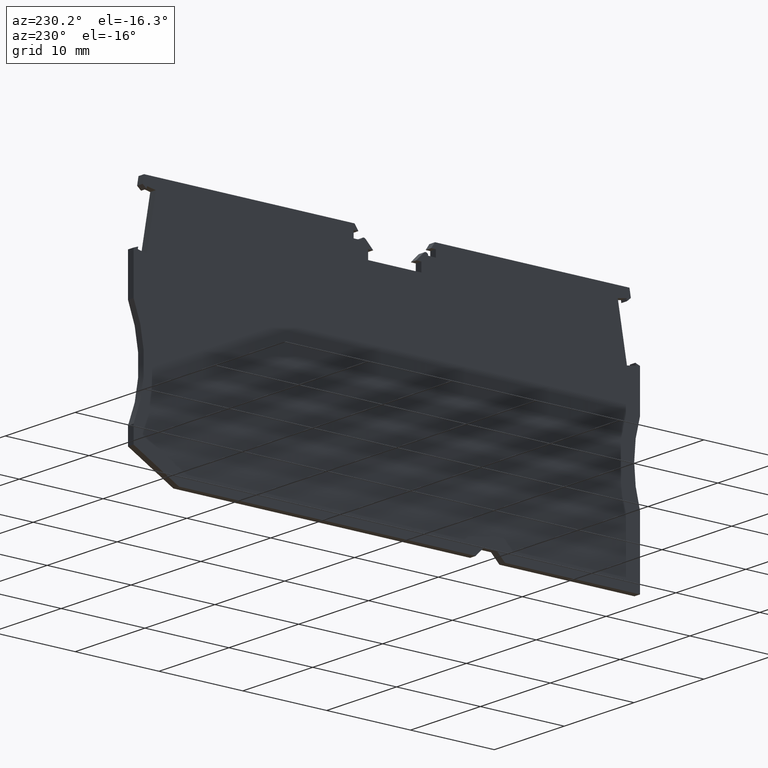
[diagram: clean part render]
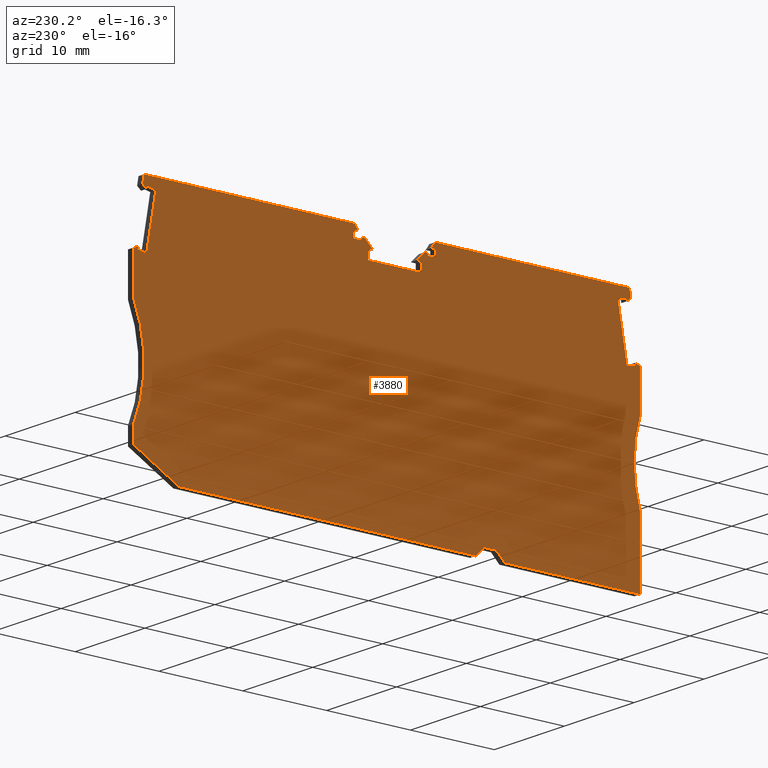
[diagram: same view with one face highlighted and labeled with its STEP entity id]
A machine part, auxiliary view. The second image highlights one B-rep face of the part: STEP entity #3880.
In plain terms, the highlighted planar face has unit normal (-1, 0, 0).
Its self-contained STEP definition (entity closure, byte-faithful):
#10=CARTESIAN_POINT('',(5.15000000000215,29.5008364585671,
6.60000000000372));
#20=DIRECTION('',(-1.,2.6054385416317E-18,1.33912933811495E-29));
#30=DIRECTION('',(-2.6054385416317E-18,-1.,2.47316056523061E-13));
#40=AXIS2_PLACEMENT_3D('',#10,#20,#30);
#50=PLANE('',#40);
#60=CARTESIAN_POINT('',(5.15000000000215,-11.6296808260473,
30.0845663548104));
#70=DIRECTION('',(-1.72251695570906E-18,-0.984807753012126,
0.173648177667397));
#80=VECTOR('',#70,1.);
#90=LINE('',#60,#80);
#100=CARTESIAN_POINT('',(5.15000000000215,1.55418527211285,
27.7598950516506));
#110=VERTEX_POINT('',#100);
#120=CARTESIAN_POINT('',(5.15000000000215,0.506641544359464,
27.944605274326));
#130=VERTEX_POINT('',#120);
#140=EDGE_CURVE('',#110,#130,#90,.T.);
#150=ORIENTED_EDGE('',*,*,#140,.F.);
#160=CARTESIAN_POINT('',(5.15000000000215,3.4081716127214,
44.4000000000081));
#170=DIRECTION('',(-1.76637357092951E-17,0.173648177667883,
0.98480775301204));
#180=VECTOR('',#170,1.);
#190=LINE('',#160,#180);
#200=CARTESIAN_POINT('',(5.15000000000215,0.55436571631232,
28.215262503077));
#210=VERTEX_POINT('',#200);
#220=EDGE_CURVE('',#130,#210,#190,.T.);
#230=ORIENTED_EDGE('',*,*,#220,.F.);
#240=CARTESIAN_POINT('',(5.15000000000215,-11.6296808260489,
23.7806322288468));
#250=DIRECTION('',(-8.99420676283076E-19,0.939692620788468,
0.342020143318635));
#260=VECTOR('',#250,1.);
#270=LINE('',#240,#260);
#280=CARTESIAN_POINT('',(5.15000000000215,2.06412664738309E-12,
28.0134898834471));
#290=VERTEX_POINT('',#280);
#300=EDGE_CURVE('',#290,#210,#270,.T.);
#310=ORIENTED_EDGE('',*,*,#300,.T.);
#320=CARTESIAN_POINT('',(5.15000000000215,6.08579853178526E-12,
44.4000000000089));
#330=DIRECTION('',(-1.39162937710337E-29,-2.45262143927505E-13,-1.));
#340=VECTOR('',#330,1.);
#350=LINE('',#320,#340);
#360=CARTESIAN_POINT('',(5.15000000000215,8.86402062860725E-13,
23.2000000000051));
#370=VERTEX_POINT('',#360);
#380=EDGE_CURVE('',#290,#370,#350,.T.);
#390=ORIENTED_EDGE('',*,*,#380,.F.);
#400=CARTESIAN_POINT('',(5.15000000000215,-14.3090880212528,
18.7000000000034));
#410=DIRECTION('',(1.,-2.6054385416317E-18,-1.33912933811495E-29));
#420=DIRECTION('',(2.6054385416317E-18,1.,-2.47218912008407E-13));
#430=AXIS2_PLACEMENT_3D('',#400,#410,#420);
#440=CIRCLE('',#430,15.);
#450=CARTESIAN_POINT('',(5.15000000000215,-1.36068933898059E-12,
14.1999999999946));
#460=VERTEX_POINT('',#450);
#470=EDGE_CURVE('',#460,#370,#440,.T.);
#480=ORIENTED_EDGE('',*,*,#470,.T.);
#490=CARTESIAN_POINT('',(5.15000000000215,-2.26307861339592E-12,
10.5138730000089));
#500=DIRECTION('',(-1.40303088237414E-29,-2.45262143927505E-13,-1.));
#510=VECTOR('',#500,1.);
#520=LINE('',#490,#510);
#530=CARTESIAN_POINT('',(5.15000000000215,-3.32178728967847E-12,
6.200000000011));
#540=VERTEX_POINT('',#530);
#550=EDGE_CURVE('',#460,#540,#520,.T.);
#560=ORIENTED_EDGE('',*,*,#550,.F.);
#570=CARTESIAN_POINT('',(5.15000000000215,36.2906041739468,
6.20000000000204));
#580=DIRECTION('',(2.6054385416317E-18,1.,-2.47218912008407E-13));
#590=VECTOR('',#580,1.);
#600=LINE('',#570,#590);
#610=CARTESIAN_POINT('',(5.15000000000215,16.0999999999931,
6.20000000000702));
#620=VERTEX_POINT('',#610);
#630=EDGE_CURVE('',#540,#620,#600,.T.);
#640=ORIENTED_EDGE('',*,*,#630,.F.);
#650=CARTESIAN_POINT('',(5.15000000000215,20.413872999992,
10.5138730000039));
#660=DIRECTION('',(1.84232326076248E-18,0.70710678118672,
0.707106781186375));
#670=VECTOR('',#660,1.);
#680=LINE('',#650,#670);
#690=CARTESIAN_POINT('',(5.15000000000215,17.0999999999933,
7.20000000000679));
#700=VERTEX_POINT('',#690);
#710=EDGE_CURVE('',#620,#700,#680,.T.);
#720=ORIENTED_EDGE('',*,*,#710,.F.);
#730=CARTESIAN_POINT('',(5.15000000000215,36.290604173947,
7.20000000000205));
#740=DIRECTION('',(2.6054385416317E-18,1.,-2.47316056523061E-13));
#750=VECTOR('',#740,1.);
#760=LINE('',#730,#750);
#770=CARTESIAN_POINT('',(5.15000000000216,18.5999999999933,
7.20000000000642));
#780=VERTEX_POINT('',#770);
#790=EDGE_CURVE('',#700,#780,#760,.T.);
#800=ORIENTED_EDGE('',*,*,#790,.F.);
#810=CARTESIAN_POINT('',(5.15000000000215,15.2861269999962,
10.5138730000051));
#820=DIRECTION('',(1.84232326074263E-18,0.707106781186369,
-0.707106781186726));
#830=VECTOR('',#820,1.);
#840=LINE('',#810,#830);
#850=CARTESIAN_POINT('',(5.15000000000215,19.5999999999931,
6.20000000000615));
#860=VERTEX_POINT('',#850);
#870=EDGE_CURVE('',#780,#860,#840,.T.);
#880=ORIENTED_EDGE('',*,*,#870,.F.);
#890=CARTESIAN_POINT('',(5.15000000000215,36.2906041739468,
6.20000000000203));
#900=DIRECTION('',(-2.6054385416317E-18,-1.,2.47413201037716E-13));
#910=VECTOR('',#900,1.);
#920=LINE('',#890,#910);
#930=CARTESIAN_POINT('',(5.15000000000215,54.9927090400278,
6.1999999999974));
#940=VERTEX_POINT('',#930);
#950=EDGE_CURVE('',#940,#860,#920,.T.);
#960=ORIENTED_EDGE('',*,*,#950,.T.);
#970=CARTESIAN_POINT('',(5.15000000000215,36.2906041739442,
-4.17604874851547));
#980=DIRECTION('',(2.27828720063853E-18,0.87443521089744,
0.485142311020951));
#990=VECTOR('',#980,1.);
#1000=LINE('',#970,#990);
#1010=CARTESIAN_POINT('',(5.15000000000215,60.3999999999976,
9.19999999998612));
#1020=VERTEX_POINT('',#1010);
#1030=EDGE_CURVE('',#940,#1020,#1000,.T.);
#1040=ORIENTED_EDGE('',*,*,#1030,.F.);
#1050=CARTESIAN_POINT('',(5.15000000000215,60.399999999998,
10.513872999994));
#1060=DIRECTION('',(1.4035660166779E-29,2.47316056523061E-13,1.));
#1070=VECTOR('',#1060,1.);
#1080=LINE('',#1050,#1070);
#1090=CARTESIAN_POINT('',(5.15000000000215,60.3999999999981,
11.1999999999951));
#1100=VERTEX_POINT('',#1090);
#1110=EDGE_CURVE('',#1020,#1100,#1080,.T.);
#1120=ORIENTED_EDGE('',*,*,#1110,.F.);
#1130=CARTESIAN_POINT('',(5.15000000000215,74.1477270848688,
17.1999999999879));
#1140=DIRECTION('',(1.,-2.6054385416317E-18,-1.33912933811495E-29));
#1150=DIRECTION('',(2.6054385416317E-18,1.,-2.47218912008407E-13));
#1160=AXIS2_PLACEMENT_3D('',#1130,#1140,#1150);
#1170=CIRCLE('',#1160,15.);
#1180=CARTESIAN_POINT('',(5.15000000000215,60.4000000000028,
23.1999999999913));
#1190=VERTEX_POINT('',#1180);
#1200=EDGE_CURVE('',#1190,#1100,#1170,.T.);
#1210=ORIENTED_EDGE('',*,*,#1200,.T.);
#1220=CARTESIAN_POINT('',(5.15000000000215,60.3999999999996,
10.513872999994));
#1230=DIRECTION('',(1.40354070627136E-29,2.47218912007316E-13,1.));
#1240=VECTOR('',#1230,1.);
#1250=LINE('',#1220,#1240);
#1260=CARTESIAN_POINT('',(5.15000000000215,60.400000000004,
28.0134898833314));
#1270=VERTEX_POINT('',#1260);
#1280=EDGE_CURVE('',#1190,#1270,#1250,.T.);
#1290=ORIENTED_EDGE('',*,*,#1280,.F.);
#1300=CARTESIAN_POINT('',(5.15000000000215,36.2906041739543,
36.7885923299644));
#1310=DIRECTION('',(2.44831137148416E-18,0.9396926207883,
-0.342020143319098));
#1320=VECTOR('',#1310,1.);
#1330=LINE('',#1300,#1320);
#1340=CARTESIAN_POINT('',(5.15000000000215,59.8524660845461,
28.212775930805));
#1350=VERTEX_POINT('',#1340);
#1360=EDGE_CURVE('',#1350,#1270,#1330,.T.);
#1370=ORIENTED_EDGE('',*,*,#1360,.T.);
#1380=CARTESIAN_POINT('',(5.15000000000216,62.973260200197,
10.5138729999933));
#1390=DIRECTION('',(-4.5242965476556E-19,-0.173648177667398,
0.984807753012126));
#1400=VECTOR('',#1390,1.);
#1410=LINE('',#1380,#1400);
#1420=CARTESIAN_POINT('',(5.15000000000215,59.8997518067207,
27.9446052743093));
#1430=VERTEX_POINT('',#1420);
#1440=EDGE_CURVE('',#1430,#1350,#1410,.T.);
#1450=ORIENTED_EDGE('',*,*,#1440,.T.);
#1460=CARTESIAN_POINT('',(5.15000000000215,36.2906041739511,
23.7816755551231));
#1470=DIRECTION('',(-2.56585607579806E-18,-0.984807753012211,
-0.173648177666912));
#1480=VECTOR('',#1470,1.);
#1490=LINE('',#1460,#1480);
#1500=CARTESIAN_POINT('',(5.15000000000215,58.8460075109985,
27.7588017242058));
#1510=VERTEX_POINT('',#1500);
#1520=EDGE_CURVE('',#1430,#1510,#1490,.T.);
#1530=ORIENTED_EDGE('',*,*,#1520,.F.);
#1540=CARTESIAN_POINT('',(5.15000000000215,61.8867537254707,
10.5138729999936));
#1550=DIRECTION('',(4.52429654764229E-19,0.173648177666887,
-0.984807753012216));
#1560=VECTOR('',#1550,1.);
#1570=LINE('',#1540,#1560);
#1580=CARTESIAN_POINT('',(5.15000000000215,57.7476827872554,
33.9877107620084));
#1590=VERTEX_POINT('',#1580);
#1600=EDGE_CURVE('',#1590,#1510,#1570,.T.);
#1610=ORIENTED_EDGE('',*,*,#1600,.T.);
#1620=CARTESIAN_POINT('',(5.15000000000215,36.2906041739527,
30.2042488753086));
#1630=DIRECTION('',(2.56585607579822E-18,0.984807753012272,
0.17364817766657));
#1640=VECTOR('',#1630,1.);
#1650=LINE('',#1620,#1640);
#1660=CARTESIAN_POINT('',(5.15000000000215,58.8014270829787,
34.1735143121116));
#1670=VERTEX_POINT('',#1660);
#1680=EDGE_CURVE('',#1590,#1670,#1650,.T.);
#1690=ORIENTED_EDGE('',*,*,#1680,.F.);
#1700=CARTESIAN_POINT('',(5.15000000000216,62.9732602001688,
10.5138729999933));
#1710=DIRECTION('',(-4.52429654762137E-19,-0.173648177666084,
0.984807753012357));
#1720=VECTOR('',#1710,1.);
#1730=LINE('',#1700,#1720);
#1740=CARTESIAN_POINT('',(5.15000000000216,58.8487128051534,
33.9053436556138));
#1750=VERTEX_POINT('',#1740);
#1760=EDGE_CURVE('',#1750,#1670,#1730,.T.);
#1770=ORIENTED_EDGE('',*,*,#1760,.T.);
#1780=CARTESIAN_POINT('',(5.15000000000215,36.2906041739489,
14.976843023174));
#1790=DIRECTION('',(-1.99588171671624E-18,-0.766044443119997,
-0.642787609685325));
#1800=VECTOR('',#1790,1.);
#1810=LINE('',#1780,#1800);
#1820=CARTESIAN_POINT('',(5.15000000000216,59.3175253285266,
34.2987240710663));
#1830=VERTEX_POINT('',#1820);
#1840=EDGE_CURVE('',#1830,#1750,#1810,.T.);
#1850=ORIENTED_EDGE('',*,*,#1840,.T.);
#1860=CARTESIAN_POINT('',(5.15000000000215,63.5114363044938,
10.5138729999932));
#1870=DIRECTION('',(-4.52429654764816E-19,-0.173648177667112,
0.984807753012176));
#1880=VECTOR('',#1870,1.);
#1890=LINE('',#1860,#1880);
#1900=CARTESIAN_POINT('',(5.15000000000215,59.1497897161592,
35.2499999999864));
#1910=VERTEX_POINT('',#1900);
#1920=EDGE_CURVE('',#1830,#1910,#1890,.T.);
#1930=ORIENTED_EDGE('',*,*,#1920,.F.);
#1940=CARTESIAN_POINT('',(5.15000000000215,-11.6296808260461,
35.2500000000039));
#1950=DIRECTION('',(-2.6054385416317E-18,-1.,2.47218912008407E-13));
#1960=VECTOR('',#1950,1.);
#1970=LINE('',#1940,#1960);
#1980=CARTESIAN_POINT('',(5.15000000000215,34.0485682692847,
35.2499999999926));
#1990=VERTEX_POINT('',#1980);
#2000=EDGE_CURVE('',#1910,#1990,#1970,.T.);
#2010=ORIENTED_EDGE('',*,*,#2000,.F.);
#2020=CARTESIAN_POINT('',(5.15000000000215,40.4554672439113,
44.3999999999989));
#2030=DIRECTION('',(-3.33343064548209E-17,-0.573576436351246,
-0.819152044288852));
#2040=VECTOR('',#2030,1.);
#2050=LINE('',#2020,#2040);
#2060=CARTESIAN_POINT('',(5.15000000000215,33.5934333694935,
34.6000000000572));
#2070=VERTEX_POINT('',#2060);
#2080=EDGE_CURVE('',#1990,#2070,#2050,.T.);
#2090=ORIENTED_EDGE('',*,*,#2080,.F.);
#2100=CARTESIAN_POINT('',(5.15000000000215,-11.6296808260462,
34.6000000000684));
#2110=DIRECTION('',(2.6054385416317E-18,1.,-2.47218912008407E-13));
#2120=VECTOR('',#2110,1.);
#2130=LINE('',#2100,#2120);
#2140=CARTESIAN_POINT('',(5.15000000000215,34.1500000001094,
34.6000000000571));
#2150=VERTEX_POINT('',#2140);
#2160=EDGE_CURVE('',#2070,#2150,#2130,.T.);
#2170=ORIENTED_EDGE('',*,*,#2160,.F.);
#2180=CARTESIAN_POINT('',(5.15000000000215,34.150000000166,
44.4000000000005));
#2190=DIRECTION('',(3.35194174038394E-28,5.77342340601916E-12,1.));
#2200=VECTOR('',#2190,1.);
#2210=LINE('',#2180,#2200);
#2220=CARTESIAN_POINT('',(5.15000000000215,34.1500000001048,
33.8000000000155));
#2230=VERTEX_POINT('',#2220);
#2240=EDGE_CURVE('',#2230,#2150,#2210,.T.);
#2250=ORIENTED_EDGE('',*,*,#2240,.T.);
#2260=CARTESIAN_POINT('',(5.15000000000215,-11.6296808260464,
33.8000000000268));
#2270=DIRECTION('',(2.6054385416317E-18,1.,-2.47316056523061E-13));
#2280=VECTOR('',#2270,1.);
#2290=LINE('',#2260,#2280);
#2300=CARTESIAN_POINT('',(5.15000000000215,33.2404163058027,
33.8000000000157));
#2310=VERTEX_POINT('',#2300);
#2320=EDGE_CURVE('',#2310,#2230,#2290,.T.);
#2330=ORIENTED_EDGE('',*,*,#2320,.T.);
#2340=CARTESIAN_POINT('',(5.15000000000215,32.9404163058027,
33.8000000000591));
#2350=DIRECTION('',(-1.,5.81165897728895E-17,-3.37505634420511E-31));
#2360=DIRECTION('',(-5.81165897728895E-17,-1.,3.04353764413179E-13));
#2370=AXIS2_PLACEMENT_3D('',#2340,#2350,#2360);
#2380=CIRCLE('',#2370,0.3);
#2390=CARTESIAN_POINT('',(5.15000000000215,32.7282842714468,
34.0121320344151));
#2400=VERTEX_POINT('',#2390);
#2410=EDGE_CURVE('',#2400,#2310,#2380,.T.);
#2420=ORIENTED_EDGE('',*,*,#2410,.T.);
#2430=CARTESIAN_POINT('',(5.15000000000215,-11.6296808260573,
-10.3458330630619));
#2440=DIRECTION('',(4.10946347278593E-17,0.707106781186764,
0.707106781186331));
#2450=VECTOR('',#2440,1.);
#2460=LINE('',#2430,#2450);
#2470=CARTESIAN_POINT('',(5.15000000000216,31.8161522370139,
33.0999999999827));
#2480=VERTEX_POINT('',#2470);
#2490=EDGE_CURVE('',#2480,#2400,#2460,.T.);
#2500=ORIENTED_EDGE('',*,*,#2490,.T.);
#2510=CARTESIAN_POINT('',(5.15000000000215,-11.6296808260466,
33.0999999999955));
#2520=DIRECTION('',(-2.6054385416317E-18,-1.,2.92835200532693E-13));
#2530=VECTOR('',#2520,1.);
#2540=LINE('',#2510,#2530);
#2550=CARTESIAN_POINT('',(5.15000000000215,32.4250000001224,
33.0999999999826));
#2560=VERTEX_POINT('',#2550);
#2570=EDGE_CURVE('',#2560,#2480,#2540,.T.);
#2580=ORIENTED_EDGE('',*,*,#2570,.T.);
#2590=CARTESIAN_POINT('',(5.15000000000215,32.4250000001169,
10.5138730000009));
#2600=DIRECTION('',(1.40333822302157E-29,2.46441755891169E-13,1.));
#2610=VECTOR('',#2600,1.);
#2620=LINE('',#2590,#2610);
#2630=CARTESIAN_POINT('',(5.15000000000215,32.4250000001222,
32.0499999999829));
#2640=VERTEX_POINT('',#2630);
#2650=EDGE_CURVE('',#2640,#2560,#2620,.T.);
#2660=ORIENTED_EDGE('',*,*,#2650,.T.);
#2670=CARTESIAN_POINT('',(5.15000000000215,36.2906041739532,
32.0499999999817));
#2680=DIRECTION('',(2.6054385416317E-18,1.,-3.0517255389384E-13));
#2690=VECTOR('',#2680,1.);
#2700=LINE('',#2670,#2690);
#2710=CARTESIAN_POINT('',(5.15000000000215,26.0750000001222,
32.0499999999848));
#2720=VERTEX_POINT('',#2710);
#2730=EDGE_CURVE('',#2720,#2640,#2700,.T.);
#2740=ORIENTED_EDGE('',*,*,#2730,.T.);
#2750=CARTESIAN_POINT('',(5.15000000000215,26.0750000001156,
10.5138730000025));
#2760=DIRECTION('',(-1.41864017149126E-29,-3.0517255389384E-13,-1.));
#2770=VECTOR('',#2760,1.);
#2780=LINE('',#2750,#2770);
#2790=CARTESIAN_POINT('',(5.15000000000215,26.0750000001225,
33.0999999999846));
#2800=VERTEX_POINT('',#2790);
#2810=EDGE_CURVE('',#2800,#2720,#2780,.T.);
#2820=ORIENTED_EDGE('',*,*,#2810,.T.);
#2830=CARTESIAN_POINT('',(5.15000000000215,-11.6296808260466,
33.0999999999944));
#2840=DIRECTION('',(-2.6054385416317E-18,-1.,2.58862375979163E-13));
#2850=VECTOR('',#2840,1.);
#2860=LINE('',#2830,#2850);
#2870=CARTESIAN_POINT('',(5.15000000000216,26.6838477632309,
33.0999999999844));
#2880=VERTEX_POINT('',#2870);
#2890=EDGE_CURVE('',#2880,#2800,#2860,.T.);
#2900=ORIENTED_EDGE('',*,*,#2890,.T.);
#2910=CARTESIAN_POINT('',(5.15000000000215,-11.6296808260371,
71.4135285892713));
#2920=DIRECTION('',(4.10946347278371E-17,0.707106781186374,
-0.707106781186721));
#2930=VECTOR('',#2920,1.);
#2940=LINE('',#2910,#2930);
#2950=CARTESIAN_POINT('',(5.15000000000215,25.7717157287986,
34.0121320344173));
#2960=VERTEX_POINT('',#2950);
#2970=EDGE_CURVE('',#2960,#2880,#2940,.T.);
#2980=ORIENTED_EDGE('',*,*,#2970,.T.);
#2990=CARTESIAN_POINT('',(5.15000000000215,25.5595836944425,
33.8000000000614));
#3000=DIRECTION('',(1.,-5.81165897728895E-17,3.37505634420511E-31));
#3010=DIRECTION('',(5.81165897728895E-17,1.,-2.47316056523061E-13));
#3020=AXIS2_PLACEMENT_3D('',#2990,#3000,#3010);
#3030=CIRCLE('',#3020,0.3);
#3040=CARTESIAN_POINT('',(5.15000000000215,25.2595836944425,
33.799999999975));
#3050=VERTEX_POINT('',#3040);
#3060=EDGE_CURVE('',#2960,#3050,#3030,.T.);
#3070=ORIENTED_EDGE('',*,*,#3060,.F.);
#3080=CARTESIAN_POINT('',(5.15000000000215,-11.6296808260464,
33.7999999999841));
#3090=DIRECTION('',(2.6054385416317E-18,1.,-2.47316056523061E-13));
#3100=VECTOR('',#3090,1.);
#3110=LINE('',#3080,#3100);
#3120=CARTESIAN_POINT('',(5.15000000000215,24.3500000001405,
33.7999999999752));
#3130=VERTEX_POINT('',#3120);
#3140=EDGE_CURVE('',#3130,#3050,#3110,.T.);
#3150=ORIENTED_EDGE('',*,*,#3140,.T.);
#3160=CARTESIAN_POINT('',(5.15000000000215,24.3500000000845,
44.4000000000029));
#3170=DIRECTION('',(3.07122853704836E-28,5.27879129297304E-12,-1.));
#3180=VECTOR('',#3170,1.);
#3190=LINE('',#3160,#3180);
#3200=CARTESIAN_POINT('',(5.15000000000215,24.3500000001362,
34.6000000000596));
#3210=VERTEX_POINT('',#3200);
#3220=EDGE_CURVE('',#3210,#3130,#3190,.T.);
#3230=ORIENTED_EDGE('',*,*,#3220,.T.);
#3240=CARTESIAN_POINT('',(5.15000000000215,-11.6296808260462,
34.6000000000684));
#3250=DIRECTION('',(2.6054385416317E-18,1.,-2.47218912008407E-13));
#3260=VECTOR('',#3250,1.);
#3270=LINE('',#3240,#3260);
#3280=CARTESIAN_POINT('',(5.15000000000215,24.9065666307521,
34.6000000000594));
#3290=VERTEX_POINT('',#3280);
#3300=EDGE_CURVE('',#3210,#3290,#3270,.T.);
#3310=ORIENTED_EDGE('',*,*,#3300,.F.);
#3320=CARTESIAN_POINT('',(5.15000000000215,18.0445327563391,
44.4000000000045));
#3330=DIRECTION('',(-3.3334306454798E-17,-0.573576436350841,
0.819152044289136));
#3340=VECTOR('',#3330,1.);
#3350=LINE('',#3320,#3340);
#3360=CARTESIAN_POINT('',(5.15000000000215,24.4514317309689,
35.2499999999839));
#3370=VERTEX_POINT('',#3360);
#3380=EDGE_CURVE('',#3290,#3370,#3350,.T.);
#3390=ORIENTED_EDGE('',*,*,#3380,.F.);
#3400=CARTESIAN_POINT('',(5.15000000000215,-11.6296808260461,
35.2499999999885));
#3410=DIRECTION('',(-2.6054385416317E-18,-1.,1.26176846748649E-13));
#3420=VECTOR('',#3410,1.);
#3430=LINE('',#3400,#3420);
#3440=CARTESIAN_POINT('',(5.15000000000215,1.25660363491963,
35.2499999999869));
#3450=VERTEX_POINT('',#3440);
#3460=EDGE_CURVE('',#3370,#3450,#3430,.T.);
#3470=ORIENTED_EDGE('',*,*,#3460,.F.);
#3480=CARTESIAN_POINT('',(5.15000000000215,2.86999550841224,
44.4000000000082));
#3490=DIRECTION('',(1.00918399063173E-17,0.173648177667598,
0.984807753012091));
#3500=VECTOR('',#3490,1.);
#3510=LINE('',#3480,#3500);
#3520=CARTESIAN_POINT('',(5.15000000000215,1.08804400656258,
34.2940508441678));
#3530=VERTEX_POINT('',#3520);
#3540=EDGE_CURVE('',#3530,#3450,#3510,.T.);
#3550=ORIENTED_EDGE('',*,*,#3540,.T.);
#3560=CARTESIAN_POINT('',(5.15000000000215,-11.6296808260437,
44.9654890605981));
#3570=DIRECTION('',(3.87468361982984E-17,-0.76604444311968,
0.642787609685702));
#3580=VECTOR('',#3570,1.);
#3590=LINE('',#3560,#3580);
#3600=CARTESIAN_POINT('',(5.15000000000215,1.55685652993745,
33.9006704287135));
#3610=VERTEX_POINT('',#3600);
#3620=EDGE_CURVE('',#3610,#3530,#3590,.T.);
#3630=ORIENTED_EDGE('',*,*,#3620,.T.);
#3640=CARTESIAN_POINT('',(5.15000000000215,3.40817161270295,
44.4000000000081));
#3650=DIRECTION('',(1.00918399062575E-17,0.173648177666569,
0.984807753012272));
#3660=VECTOR('',#3650,1.);
#3670=LINE('',#3640,#3660);
#3680=CARTESIAN_POINT('',(5.15000000000215,1.60477348499745,
34.1724209847973));
#3690=VERTEX_POINT('',#3680);
#3700=EDGE_CURVE('',#3610,#3690,#3670,.T.);
#3710=ORIENTED_EDGE('',*,*,#3700,.F.);
#3720=CARTESIAN_POINT('',(5.15000000000215,-11.6296808260457,
36.5060123547894));
#3730=DIRECTION('',(-1.5600304763527E-17,-0.984807753012186,
0.173648177667055));
#3740=VECTOR('',#3730,1.);
#3750=LINE('',#3720,#3740);
#3760=CARTESIAN_POINT('',(5.15000000000215,2.65231721275191,
33.9877107621221));
#3770=VERTEX_POINT('',#3760);
#3780=EDGE_CURVE('',#3770,#3690,#3750,.T.);
#3790=ORIENTED_EDGE('',*,*,#3780,.T.);
#3800=CARTESIAN_POINT('',(5.15000000000215,4.48828473633635,
44.4000000000078));
#3810=DIRECTION('',(-1.76637357093247E-17,0.173648177667372,
0.98480775301213));
#3820=VECTOR('',#3810,1.);
#3830=LINE('',#3800,#3820);
#3840=EDGE_CURVE('',#110,#3770,#3830,.T.);
#3850=ORIENTED_EDGE('',*,*,#3840,.T.);
#3860=EDGE_LOOP('',(#3850,#3790,#3710,#3630,#3550,#3470,#3390,#3310,
#3230,#3150,#3070,#2980,#2900,#2820,#2740,#2660,#2580,#2500,#2420,#2330,
#2250,#2170,#2090,#2010,#1930,#1850,#1770,#1690,#1610,#1530,#1450,#1370,
#1290,#1210,#1120,#1040,#960,#880,#800,#720,#640,#560,#480,#390,#310,
#230,#150));
#3870=FACE_OUTER_BOUND('',#3860,.T.);
#3880=ADVANCED_FACE('',(#3870),#50,.T.);